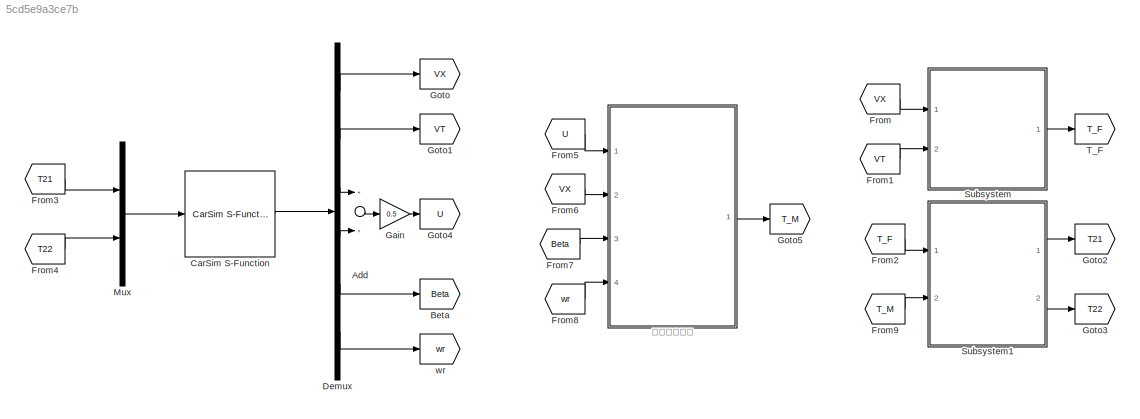
MODEL slx_5cd5e9a3ce7b
KIND model
CONFIG AbsTol = auto
CONFIG EnableMultiTasking = off
CONFIG FixedStep = auto
CONFIG MaxStep = auto
CONFIG MinStep = auto
CONFIG RelTol = 1e-3
CONFIG SampleTimeConstraint = Unconstrained
CONFIG Solver = VariableStepAuto
CONFIG SolverName = VariableStepAuto
CONFIG StartTime = 0.0
CONFIG StopTime = 15
WORKSPACE source: MAT-file member
WORKSPACE TC = 0.05
BLOCK [Sum] Add
  InputSameDT = off
  OutDataTypeStr = Inherit: Inherit via internal rule
  Ports = [2, 1]
  SaturateOnIntegerOverflow = off
BLOCK [Goto] Beta
  GotoTag = Beta
BLOCK [Reference] CarSim S-Function  REF=Solver_SF/CarSim S-Function
  Ports = [1, 1]
  Priority = 1
  SourceBlock = Solver_SF/CarSim S-Function
  SourceType = Vehicle math model library
BLOCK [Demux] Demux
  DisplayOption = bar
  Outputs = 6
  Ports = [1, 6]
BLOCK [From] From
  GotoTag = VX
BLOCK [From] From1
  GotoTag = VT
BLOCK [From] From2
  GotoTag = T_F
BLOCK [From] From3
  GotoTag = T21
BLOCK [From] From4
  GotoTag = T22
BLOCK [From] From5
  GotoTag = U
BLOCK [From] From6
  GotoTag = VX
BLOCK [From] From7
  GotoTag = Beta
BLOCK [From] From8
  GotoTag = wr
BLOCK [From] From9
  GotoTag = T_M
BLOCK [Gain] Gain
  Gain = 0.5
  OutDataTypeStr = Inherit: Inherit via internal rule
  ParamDataTypeStr = Inherit: Inherit via internal rule
  SaturateOnIntegerOverflow = off
BLOCK [Goto] Goto
  GotoTag = VX
BLOCK [Goto] Goto1
  GotoTag = VT
BLOCK [Goto] Goto2
  GotoTag = T21
BLOCK [Goto] Goto3
  GotoTag = T22
BLOCK [Goto] Goto4
  GotoTag = U
BLOCK [Goto] Goto5
  GotoTag = T_M
BLOCK [Mux] Mux
  DisplayOption = bar
  Inputs = 2
  Ports = [2, 1]
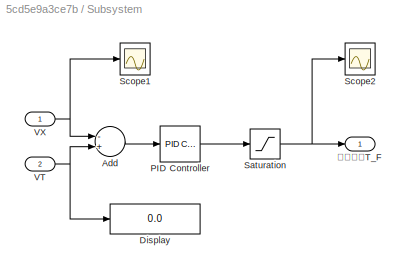
BLOCK [SubSystem] Subsystem
  Ports = [2, 1]
  RequestExecContextInheritance = off
BLOCK [Sum] Subsystem/Add
  InputSameDT = off
  Inputs = -+
  OutDataTypeStr = Inherit: Inherit via internal rule
  Ports = [2, 1]
  SaturateOnIntegerOverflow = off
BLOCK [Display] Subsystem/Display
  Decimation = 1
  Ports = [1]
BLOCK [Reference] Subsystem/PID Controller  REF=simulink/Continuous/PID Controller
  Ports = [1, 1]
  SourceBlock = simulink/Continuous/PID Controller
  SourceProductBaseCode = SL
  SourceProductName = Simulink
  SourceType = PID 1dof
BLOCK [Saturate] Subsystem/Saturation
  InputPortMap = u0
  LowerLimit = 0
  Ports = [1, 1]
  UpperLimit = 280
BLOCK [Scope] Subsystem/Scope1
  Floating = off
  NumInputPorts = 1
  Ports = [1]
  ScopeSpecificationString = Simulink.scopes.TimeScopeBlockCfg('CurrentConfiguration', extmgr.ConfigurationSet(extmgr.Configuration('Core','General UI',true),extmgr.Configuration('Core','Source UI',true),extmgr.Configuration('Sources','WiredSimulink',true,'DataLoggingVariableName','ScopeData1'),extmgr.Configuration('Visuals','Time Domain',true,'SerializedDisplays',{struct('MinYLimReal','79.502','MaxYLimReal','80.28373','YLabe...<+1384ch>
BLOCK [Scope] Subsystem/Scope2
  Floating = off
  NumInputPorts = 1
  Ports = [1]
  ScopeSpecificationString = Simulink.scopes.TimeScopeBlockCfg('CurrentConfiguration', extmgr.ConfigurationSet(extmgr.Configuration('Core','General UI',true),extmgr.Configuration('Core','Source UI',true),extmgr.Configuration('Sources','WiredSimulink',true,'DataLoggingVariableName','ScopeData1'),extmgr.Configuration('Visuals','Time Domain',true,'SerializedDisplays',{struct('MinYLimReal','-27.41813','MaxYLimReal','246.76316','Y...<+1459ch>
BLOCK [Inport] Subsystem/VT
  IconDisplay = Port number
  Port = 2
BLOCK [Inport] Subsystem/VX
  IconDisplay = Port number
BLOCK [Outport] Subsystem/整车力矩T_F
  IconDisplay = Port number
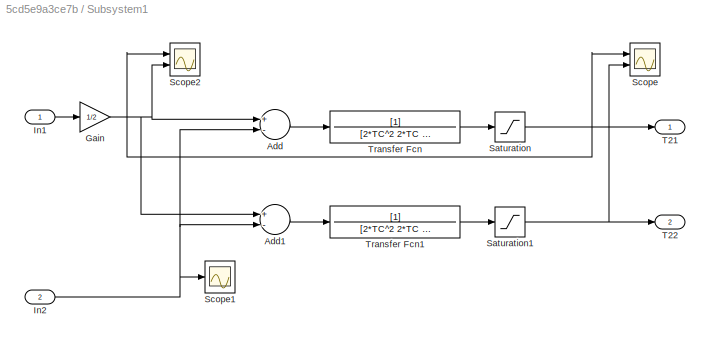
BLOCK [SubSystem] Subsystem1
  Ports = [2, 2]
  RequestExecContextInheritance = off
BLOCK [Sum] Subsystem1/Add
  InputSameDT = off
  Inputs = +-
  OutDataTypeStr = Inherit: Inherit via internal rule
  Ports = [2, 1]
  SaturateOnIntegerOverflow = off
BLOCK [Sum] Subsystem1/Add1
  InputSameDT = off
  Inputs = +-
  OutDataTypeStr = Inherit: Inherit via internal rule
  Ports = [2, 1]
  SaturateOnIntegerOverflow = off
BLOCK [Gain] Subsystem1/Gain
  Gain = 1/2
  OutDataTypeStr = Inherit: Inherit via internal rule
  ParamDataTypeStr = Inherit: Inherit via internal rule
  SaturateOnIntegerOverflow = off
BLOCK [Inport] Subsystem1/In1
  IconDisplay = Port number
BLOCK [Inport] Subsystem1/In2
  IconDisplay = Port number
  Port = 2
BLOCK [Saturate] Subsystem1/Saturation
  InputPortMap = u0
  LowerLimit = 0
  Ports = [1, 1]
  UpperLimit = 140
BLOCK [Saturate] Subsystem1/Saturation1
  InputPortMap = u0
  LowerLimit = 0
  Ports = [1, 1]
  UpperLimit = 140
BLOCK [Scope] Subsystem1/Scope
  Floating = off
  NumInputPorts = 2
  Ports = [2]
  ScopeSpecificationString = Simulink.scopes.TimeScopeBlockCfg('CurrentConfiguration', extmgr.ConfigurationSet(extmgr.Configuration('Core','General UI',true),extmgr.Configuration('Core','Source UI',true),extmgr.Configuration('Sources','WiredSimulink',true),extmgr.Configuration('Visuals','Time Domain',true,'SerializedDisplays',{struct('MinYLimReal','-13.49456','MaxYLimReal','121.45104','YLabelReal','','MinYLimMag','0.00000','M...<+1440ch>
BLOCK [Scope] Subsystem1/Scope1
  Floating = off
  NumInputPorts = 1
  Ports = [1]
  ScopeSpecificationString = Simulink.scopes.TimeScopeBlockCfg('CurrentConfiguration', extmgr.ConfigurationSet(extmgr.Configuration('Core','General UI',true),extmgr.Configuration('Core','Source UI',true),extmgr.Configuration('Sources','WiredSimulink',true,'DataLoggingVariableName','ScopeData1'),extmgr.Configuration('Visuals','Time Domain',true,'SerializedDisplays',{struct('MinYLimReal','-17.5','MaxYLimReal','157.5','YLabelRea...<+1348ch>
BLOCK [Scope] Subsystem1/Scope2
  Floating = off
  NumInputPorts = 2
  Ports = [2]
  ScopeSpecificationString = Simulink.scopes.TimeScopeBlockCfg('CurrentConfiguration', extmgr.ConfigurationSet(extmgr.Configuration('Core','General UI',true),extmgr.Configuration('Core','Source UI',true),extmgr.Configuration('Sources','WiredSimulink',true,'DataLoggingVariableName','ScopeData2'),extmgr.Configuration('Visuals','Time Domain',true,'SerializedDisplays',{struct('MinYLimReal','-13.70906','MaxYLimReal','123.38158','Y...<+1461ch>
BLOCK [Outport] Subsystem1/T21
  IconDisplay = Port number
BLOCK [Outport] Subsystem1/T22
  IconDisplay = Port number
  Port = 2
BLOCK [TransferFcn] Subsystem1/Transfer Fcn
  Denominator = [2*TC^2 2*TC 1]
BLOCK [TransferFcn] Subsystem1/Transfer Fcn1
  Denominator = [2*TC^2 2*TC 1]
BLOCK [Goto] T_F
  GotoTag = T_F
BLOCK [Goto] wr
  GotoTag = wr
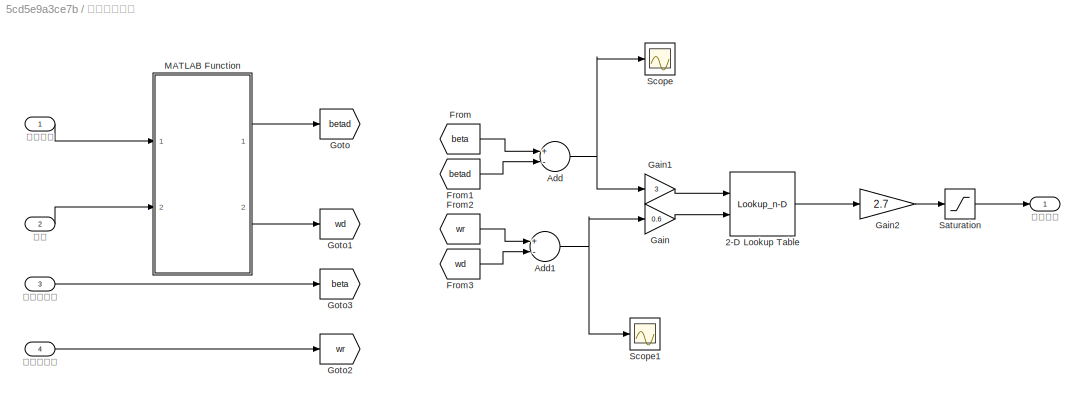
BLOCK [SubSystem] 横摆力矩控制
  Ports = [4, 1]
  RequestExecContextInheritance = off
BLOCK [Lookup_n-D] 横摆力矩控制/2-D Lookup Table
  BreakpointsForDimension1 = [1:10]
  BreakpointsForDimension2 = [1:21]
  InternalRulePriority = Speed
  Ports = [2, 1]
  RndMeth = Simplest
  Table = [0	0	0	0	0	0	0	0	0	0	0	0	0	0	0	0	0	0	0	0	0;0	1.40000000000000	1.40000000000000	1.40000000000000	1.80000000000000	2.70000000000000	3.60000000000000	3.60000000000000	3.60000000000000	3.60000000000000	3.60000000000000	3.60000000000000	4.10000000000000	4.80000000000000	5.40000000000000	5.40000000000000	5.40000000000000	5.40000000000000	5.40000000000000	5.40000000000000	5.40000000000000;0	1.50000000000...<+2634ch>
BLOCK [Sum] 横摆力矩控制/Add
  InputSameDT = off
  Inputs = +-
  OutDataTypeStr = Inherit: Inherit via internal rule
  Ports = [2, 1]
  SaturateOnIntegerOverflow = off
BLOCK [Sum] 横摆力矩控制/Add1
  InputSameDT = off
  Inputs = +-
  OutDataTypeStr = Inherit: Inherit via internal rule
  Ports = [2, 1]
  SaturateOnIntegerOverflow = off
BLOCK [From] 横摆力矩控制/From
  GotoTag = beta
BLOCK [From] 横摆力矩控制/From1
  GotoTag = betad
BLOCK [From] 横摆力矩控制/From2
  GotoTag = wr
BLOCK [From] 横摆力矩控制/From3
  GotoTag = wd
BLOCK [Gain] 横摆力矩控制/Gain
  Gain = 0.6
  OutDataTypeStr = Inherit: Inherit via internal rule
  ParamDataTypeStr = Inherit: Inherit via internal rule
  SaturateOnIntegerOverflow = off
BLOCK [Gain] 横摆力矩控制/Gain1
  Gain = 3
  OutDataTypeStr = Inherit: Inherit via internal rule
  ParamDataTypeStr = Inherit: Inherit via internal rule
  SaturateOnIntegerOverflow = off
BLOCK [Gain] 横摆力矩控制/Gain2
  Gain = 2.7
  OutDataTypeStr = Inherit: Inherit via internal rule
  ParamDataTypeStr = Inherit: Inherit via internal rule
  SaturateOnIntegerOverflow = off
BLOCK [Goto] 横摆力矩控制/Goto
  GotoTag = betad
BLOCK [Goto] 横摆力矩控制/Goto1
  GotoTag = wd
BLOCK [Goto] 横摆力矩控制/Goto2
  GotoTag = wr
BLOCK [Goto] 横摆力矩控制/Goto3
  GotoTag = beta
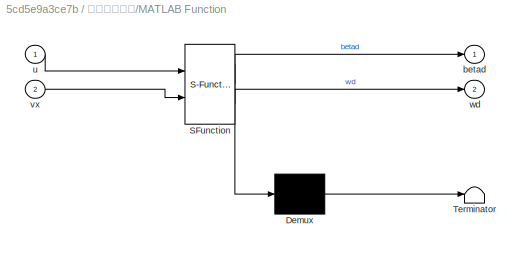
BLOCK [SubSystem] 横摆力矩控制/MATLAB Function
  ErrorFcn = Stateflow.Translate.translate
  PermitHierarchicalResolution = ExplicitOnly
  Ports = [2, 2]
  RequestExecContextInheritance = off
  SFBlockType = MATLAB Function
  TreatAsAtomicUnit = on
BLOCK [Demux] 横摆力矩控制/MATLAB Function/ Demux 
  Outputs = 1
  Ports = [1, 1]
BLOCK [S-Function] 横摆力矩控制/MATLAB Function/ SFunction 
  EnableBusSupport = on
  FunctionName = sf_sfun
  PortCounts = [2 3]
  Ports = [2, 3]
  SFcnIsStateOwnerBlock = off
  SFunctionDeploymentMode = off
  Tag = Stateflow S-Function mohu_demo1 2
BLOCK [Terminator] 横摆力矩控制/MATLAB Function/ Terminator 
BLOCK [Outport] 横摆力矩控制/MATLAB Function/betad
  IconDisplay = Port number
BLOCK [Inport] 横摆力矩控制/MATLAB Function/u
  IconDisplay = Port number
BLOCK [Inport] 横摆力矩控制/MATLAB Function/vx
  IconDisplay = Port number
  Port = 2
BLOCK [Outport] 横摆力矩控制/MATLAB Function/wd
  IconDisplay = Port number
  Port = 2
BLOCK [Saturate] 横摆力矩控制/Saturation
  InputPortMap = u0
  LowerLimit = 0
  Ports = [1, 1]
  UpperLimit = 140
BLOCK [Scope] 横摆力矩控制/Scope
  Floating = off
  NumInputPorts = 1
  Ports = [1]
  ScopeSpecificationString = Simulink.scopes.TimeScopeBlockCfg('CurrentConfiguration', extmgr.ConfigurationSet(extmgr.Configuration('Core','General UI',true),extmgr.Configuration('Core','Source UI',true),extmgr.Configuration('Sources','WiredSimulink',true,'DataLoggingVariableName','ScopeData2'),extmgr.Configuration('Visuals','Time Domain',true,'SerializedDisplays',{struct('MinYLimReal','3.83504','MaxYLimReal','3.85472','YLabe...<+1379ch>
BLOCK [Scope] 横摆力矩控制/Scope1
  Floating = off
  NumInputPorts = 1
  Ports = [1]
  ScopeSpecificationString = Simulink.scopes.TimeScopeBlockCfg('CurrentConfiguration', extmgr.ConfigurationSet(extmgr.Configuration('Core','General UI',true),extmgr.Configuration('Core','Source UI',true),extmgr.Configuration('Sources','WiredSimulink',true,'DataLoggingVariableName','ScopeData3'),extmgr.Configuration('Visuals','Time Domain',true,'SerializedDisplays',{struct('MinYLimReal','-30.00698','MaxYLimReal','26.67276','YL...<+1456ch>
BLOCK [Inport] 横摆力矩控制/前轮转角
  IconDisplay = Port number
BLOCK [Outport] 横摆力矩控制/横摆力矩
  IconDisplay = Port number
BLOCK [Inport] 横摆力矩控制/横摆角速度
  IconDisplay = Port number
  Port = 4
BLOCK [Inport] 横摆力矩控制/质心侧偏角
  IconDisplay = Port number
  Port = 3
BLOCK [Inport] 横摆力矩控制/车速
  IconDisplay = Port number
  Port = 2
LINE Add:1 -> Gain:1
LINE CarSim S-Function:1 -> Demux:1
LINE Demux:1 -> Goto:1
LINE Demux:2 -> Goto1:1
LINE Demux:3 -> Add:1
LINE Demux:4 -> Add:2
LINE Demux:5 -> Beta:1
LINE Demux:6 -> wr:1
LINE From1:1 -> Subsystem:2
LINE From2:1 -> Subsystem1:1
LINE From3:1 -> Mux:1
LINE From4:1 -> Mux:2
LINE From5:1 -> 横摆力矩控制:1
LINE From6:1 -> 横摆力矩控制:2
LINE From7:1 -> 横摆力矩控制:3
LINE From8:1 -> 横摆力矩控制:4
LINE From9:1 -> Subsystem1:2
LINE From:1 -> Subsystem:1
LINE Gain:1 -> Goto4:1
LINE Mux:1 -> CarSim S-Function:1
LINE Subsystem/Add:1 -> Subsystem/PID Controller:1
LINE Subsystem/PID Controller:1 -> Subsystem/Saturation:1
NET Subsystem/Saturation:1 -> Subsystem/Scope2:1, Subsystem/整车力矩T_F:1
NET Subsystem/VT:1 -> Subsystem/Add:2, Subsystem/Display:1
NET Subsystem/VX:1 -> Subsystem/Add:1, Subsystem/Scope1:1
LINE Subsystem1/Add1:1 -> Subsystem1/Transfer Fcn1:1
LINE Subsystem1/Add:1 -> Subsystem1/Transfer Fcn:1
NET Subsystem1/Gain:1 -> Subsystem1/Add1:1, Subsystem1/Add:1, Subsystem1/Scope2:2
LINE Subsystem1/In1:1 -> Subsystem1/Gain:1
NET Subsystem1/In2:1 -> Subsystem1/Add1:2, Subsystem1/Add:2, Subsystem1/Scope1:1
NET Subsystem1/Saturation1:1 -> Subsystem1/Scope:2, Subsystem1/T22:1
NET Subsystem1/Saturation:1 -> Subsystem1/Scope2:1, Subsystem1/Scope:1, Subsystem1/T21:1
LINE Subsystem1/Transfer Fcn1:1 -> Subsystem1/Saturation1:1
LINE Subsystem1/Transfer Fcn:1 -> Subsystem1/Saturation:1
LINE Subsystem1:1 -> Goto2:1
LINE Subsystem1:2 -> Goto3:1
LINE Subsystem:1 -> T_F:1
LINE 横摆力矩控制/2-D Lookup Table:1 -> 横摆力矩控制/Gain2:1
NET 横摆力矩控制/Add1:1 -> 横摆力矩控制/Gain:1, 横摆力矩控制/Scope1:1
NET 横摆力矩控制/Add:1 -> 横摆力矩控制/Gain1:1, 横摆力矩控制/Scope:1
LINE 横摆力矩控制/From1:1 -> 横摆力矩控制/Add:2
LINE 横摆力矩控制/From2:1 -> 横摆力矩控制/Add1:1
LINE 横摆力矩控制/From3:1 -> 横摆力矩控制/Add1:2
LINE 横摆力矩控制/From:1 -> 横摆力矩控制/Add:1
LINE 横摆力矩控制/Gain1:1 -> 横摆力矩控制/2-D Lookup Table:1
LINE 横摆力矩控制/Gain2:1 -> 横摆力矩控制/Saturation:1
LINE 横摆力矩控制/Gain:1 -> 横摆力矩控制/2-D Lookup Table:2
LINE 横摆力矩控制/MATLAB Function:1 -> 横摆力矩控制/Goto:1
LINE 横摆力矩控制/MATLAB Function:2 -> 横摆力矩控制/Goto1:1
LINE 横摆力矩控制/Saturation:1 -> 横摆力矩控制/横摆力矩:1
LINE 横摆力矩控制/前轮转角:1 -> 横摆力矩控制/MATLAB Function:1
LINE 横摆力矩控制/横摆角速度:1 -> 横摆力矩控制/Goto2:1
LINE 横摆力矩控制/质心侧偏角:1 -> 横摆力矩控制/Goto3:1
LINE 横摆力矩控制/车速:1 -> 横摆力矩控制/MATLAB Function:2
LINE 横摆力矩控制:1 -> Goto5:1
note: NET lines group one-source signal fan-out (src -> all destinations, sorted); 1:1 wires keep LINE
CHART 横摆力矩控制/MATLAB Function states=1 transitions=1
  STATE_LABEL 'eML_blk_kernel()'
  STATE_LABEL 'SCRIPT:\nfunction [betad,wd] = fcn(u,vx)\n%%\nm=275+70;%整车质量\na=1.015;%质心到前轴距离\nb=1.895;%质心到后轴的距离\nBf=1.539;%前轮轴距\nBr=1.539;%后轮轴距\nr=0.325;%轮胎有效滚动半径\nL=a+b;%轴距\nmiu=0.85;%路面附着系数\ng=9.81;%重力加速度\nIz=1536.7;%绕z轴转动惯量\nk1=-112600;%前轴侧偏刚度\nk2=-89500;%后轴侧偏刚度\nvx=120/3.6;\nA1=[(k1+k2)/m/vx (a*k1-b*k2)/m/vx/vx-1;(a*k1-b*k2)/Iz (a*a*k1+b*b*k2)/Iz/vx];%2DOF状态空间方程A矩阵\nB1=[-k1/m/vx;-a*k1/Iz];%2DOF状态空间方程B矩阵\nC=[(k1+k2)/m (a*k1-b...<+193ch>'
